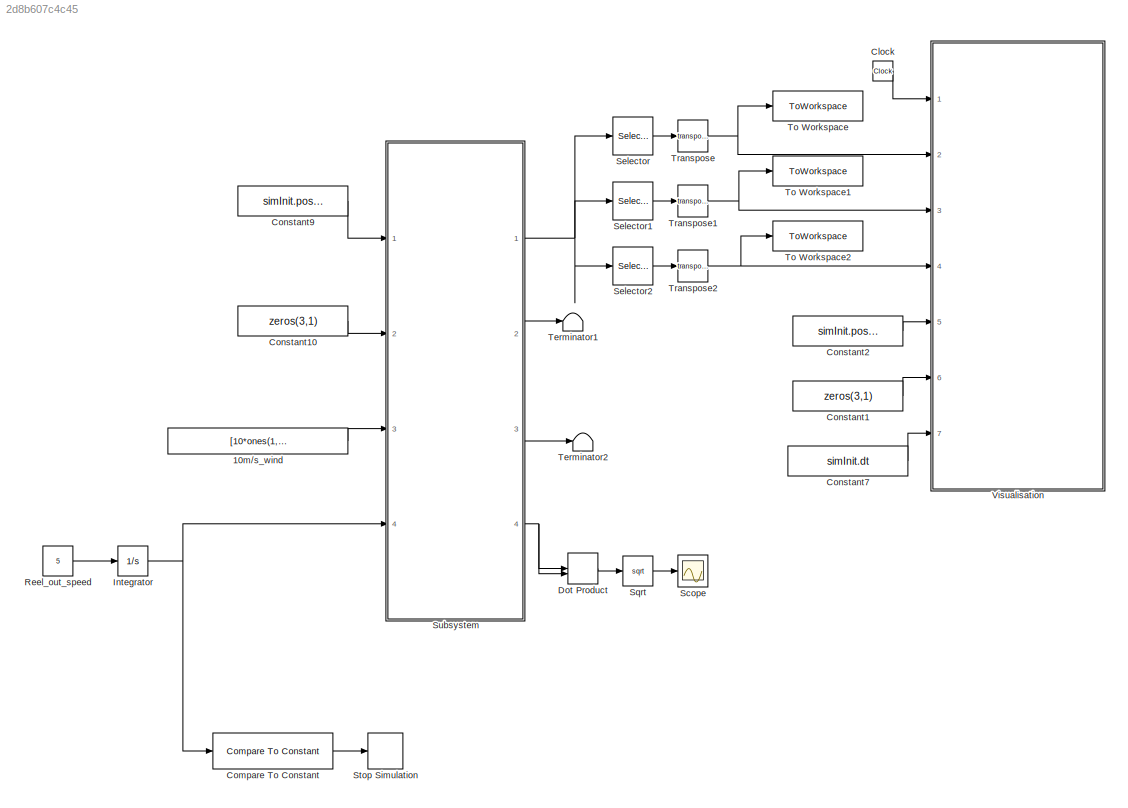
MODEL slx_2d8b607c4c45
KIND model
CONFIG AbsTol = auto
CONFIG EnableMultiTasking = on
CONFIG FixedStep = dt
CONFIG InitFcn = close all
CONFIG MaxStep = auto
CONFIG MinStep = auto
CONFIG RelTol = 1e-3
CONFIG SampleTimeConstraint = Unconstrained
CONFIG Solver = ode4
CONFIG SolverName = ode4
CONFIG StartTime = 0.0
CONFIG StopTime = 300
BLOCK [Constant] 10m//s_wind
  Value = [10*ones(1,T.np);zeros(2,T.np)]
BLOCK [Clock] Clock
BLOCK [Reference] Compare To Constant  REF=simulink/Logic and Bit
Operations/Compare
To Constant
  Ports = [1, 1]
  SourceBlock = simulink/Logic and Bit\nOperations/Compare\nTo Constant
  SourceProductBaseCode = SL
  SourceType = Compare To Constant
BLOCK [Constant] Constant1
  Value = zeros(3,1)
BLOCK [Constant] Constant10
  Value = zeros(3,1)
BLOCK [Constant] Constant2
  Value = simInit.pos_O_init
BLOCK [Constant] Constant7
  Value = simInit.dt
BLOCK [Constant] Constant9
  Value = simInit.pos_W_init
BLOCK [DotProduct] Dot Product
  OutDataTypeStr = Inherit: Inherit via internal rule
BLOCK [Integrator] Integrator
  InitialCondition = T.tether_inital_lenght
  Ports = [1, 1]
BLOCK [Constant] Reel_out_speed
  Value = 5
BLOCK [Scope] Scope
  Floating = off
  NumInputPorts = 1
  Ports = [1]
  ScopeSpecificationString = Simulink.scopes.TimeScopeBlockCfg('CurrentConfiguration', extmgr.ConfigurationSet(extmgr.Configuration('Core','General UI',true),extmgr.Configuration('Core','Source UI',true),extmgr.Configuration('Sources','WiredSimulink',true,'DataLoggingVariableName','ScopeData1'),extmgr.Configuration('Visuals','Time Domain',true,'SerializedDisplays',{struct('MinYLimReal','-0.0000001','MaxYLimReal','0.0000011','...<+1404ch>
BLOCK [Selector] Selector
  IndexOptions = Index vector (dialog),Select all
  Indices = 1,1
  InputPortWidth = 3
  NumberOfDimensions = 2
  OutputSizes = 1,1
  Ports = [1, 1]
BLOCK [Selector] Selector1
  IndexOptions = Index vector (dialog),Select all
  Indices = 2,1
  InputPortWidth = 3
  NumberOfDimensions = 2
  OutputSizes = 1,1
  Ports = [1, 1]
BLOCK [Selector] Selector2
  IndexOptions = Index vector (dialog),Select all
  Indices = 3,1
  InputPortWidth = 3
  NumberOfDimensions = 2
  OutputSizes = 1,1
  Ports = [1, 1]
BLOCK [Sqrt] Sqrt
BLOCK [Stop] Stop Simulation
BLOCK [SubSystem] Subsystem
  Ports = [4, 4]
  ReferencedSubsystem = Tether_dynamics_R2019B
  RequestExecContextInheritance = off
BLOCK [Terminator] Terminator1
BLOCK [Terminator] Terminator2
BLOCK [ToWorkspace] To Workspace
  FixptAsFi = on
  MaxDataPoints = inf
  Ports = [1]
  SampleTime = -1
  SaveFormat = Timeseries
  VariableName = Tether_x
BLOCK [ToWorkspace] To Workspace1
  FixptAsFi = on
  MaxDataPoints = inf
  Ports = [1]
  SampleTime = -1
  SaveFormat = Timeseries
  VariableName = Tether_y
BLOCK [ToWorkspace] To Workspace2
  FixptAsFi = on
  MaxDataPoints = inf
  Ports = [1]
  SampleTime = -1
  SaveFormat = Timeseries
  VariableName = Tether_z
BLOCK [Math] Transpose
  Operator = transpose
  Ports = [1, 1]
  SignedPower = off
BLOCK [Math] Transpose1
  Operator = transpose
  Ports = [1, 1]
  SignedPower = off
BLOCK [Math] Transpose2
  Operator = transpose
  Ports = [1, 1]
  SignedPower = off
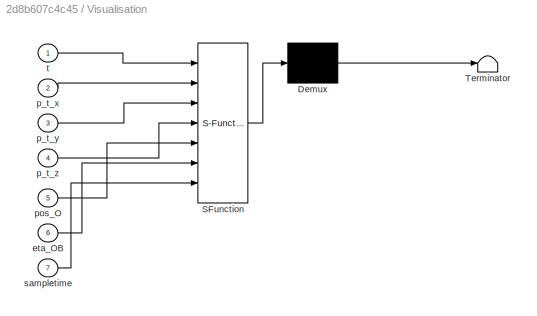
BLOCK [SubSystem] Visualisation
  Commented = on
  ErrorFcn = Stateflow.Translate.translate
  PermitHierarchicalResolution = ExplicitOnly
  Ports = [7]
  RequestExecContextInheritance = off
  SFBlockType = MATLAB Function
  TreatAsAtomicUnit = on
BLOCK [Demux] Visualisation/ Demux 
  DisplayOption = bar
  Outputs = 1
  Ports = [1, 1]
BLOCK [S-Function] Visualisation/ SFunction 
  EnableBusSupport = on
  FunctionName = sf_sfun
  Parameters = ENVMT,simInit
  PortCounts = [7 1]
  Ports = [7, 1]
  SFcnIsStateOwnerBlock = off
  SFunctionDeploymentMode = off
  Tag = Stateflow S-Function 28
BLOCK [Terminator] Visualisation/ Terminator 
BLOCK [Inport] Visualisation/eta_OB
  IconDisplay = Port number
  Port = 6
BLOCK [Inport] Visualisation/p_t_x
  IconDisplay = Port number
  Port = 2
BLOCK [Inport] Visualisation/p_t_y
  IconDisplay = Port number
  Port = 3
BLOCK [Inport] Visualisation/p_t_z
  IconDisplay = Port number
  Port = 4
BLOCK [Inport] Visualisation/pos_O
  IconDisplay = Port number
  Port = 5
BLOCK [Inport] Visualisation/sampletime
  IconDisplay = Port number
  Port = 7
BLOCK [Inport] Visualisation/t
  IconDisplay = Port number
LINE 10m//s_wind:1 -> Subsystem:3
LINE Clock:1 -> Visualisation:1
LINE Compare To Constant:1 -> Stop Simulation:1
LINE Constant10:1 -> Subsystem:2
LINE Constant1:1 -> Visualisation:6
LINE Constant2:1 -> Visualisation:5
LINE Constant7:1 -> Visualisation:7
LINE Constant9:1 -> Subsystem:1
LINE Dot Product:1 -> Sqrt:1
NET Integrator:1 -> Compare To Constant:1, Subsystem:4
LINE Reel_out_speed:1 -> Integrator:1
LINE Selector1:1 -> Transpose1:1
LINE Selector2:1 -> Transpose2:1
LINE Selector:1 -> Transpose:1
LINE Sqrt:1 -> Scope:1
NET Subsystem:1 -> Selector1:1, Selector2:1, Selector:1
LINE Subsystem:2 -> Terminator1:1
LINE Subsystem:3 -> Terminator2:1
NET Subsystem:4 -> Dot Product:1, Dot Product:2
NET Transpose1:1 -> To Workspace1:1, Visualisation:3
NET Transpose2:1 -> To Workspace2:1, Visualisation:4
NET Transpose:1 -> To Workspace:1, Visualisation:2
note: NET lines group one-source signal fan-out (src -> all destinations, sorted); 1:1 wires keep LINE
CHART Visualisation states=1 transitions=1
  STATE_LABEL 'eML_blk_kernel()'
  STATE_LABEL "SCRIPT:\nfunction Visualisation(t,p_t_x,p_t_y,p_t_z, pos_O,eta_OB, ENVMT, sampletime,simInit)   \n    persistent handleTether\n    persistent Vert\n    persistent handlePlane\n    \n    coder.extrinsic('plot3','patch');\n \n    %% Figure settings\n    if t==0\n        figure(99)\n%         addToolbarExplorationButtons(gcf)\n        xlabel('x_W (m)');%, 'interpreter', 'latex')\n        ylabel('y_W (m)');%, 'int...<+3608ch>"
